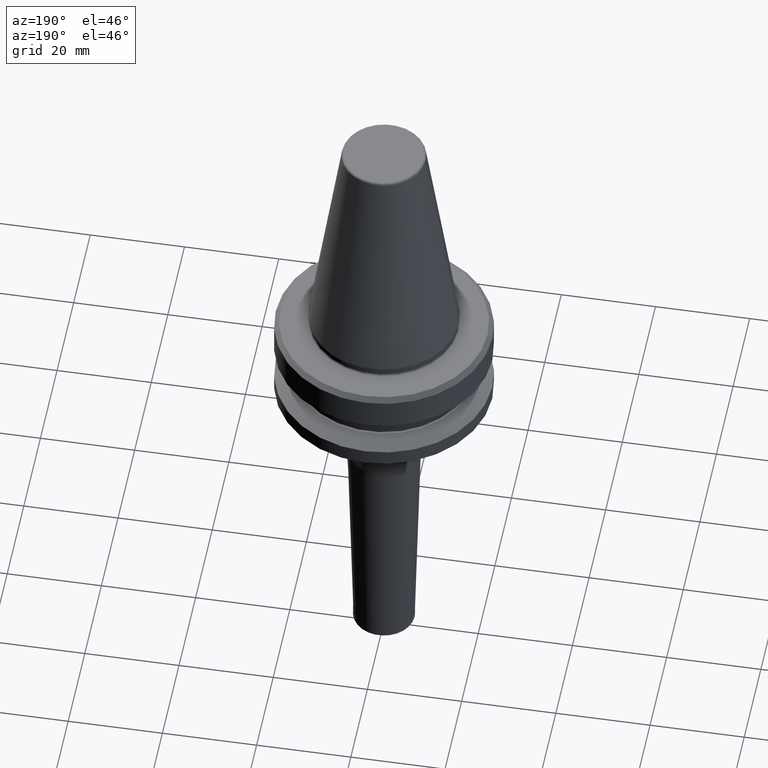
[diagram: clean part render]
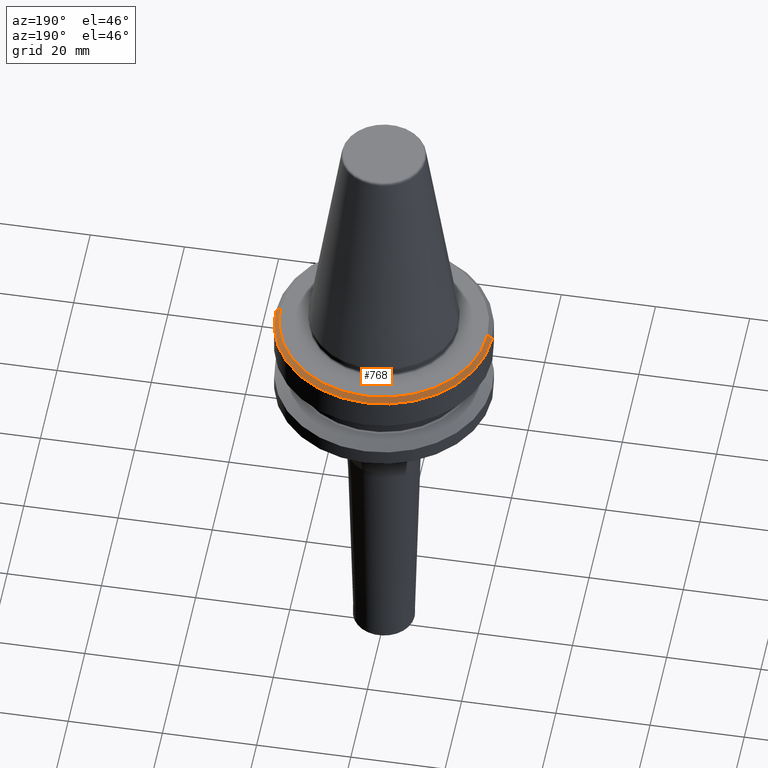
[diagram: same view with one face highlighted and labeled with its STEP entity id]
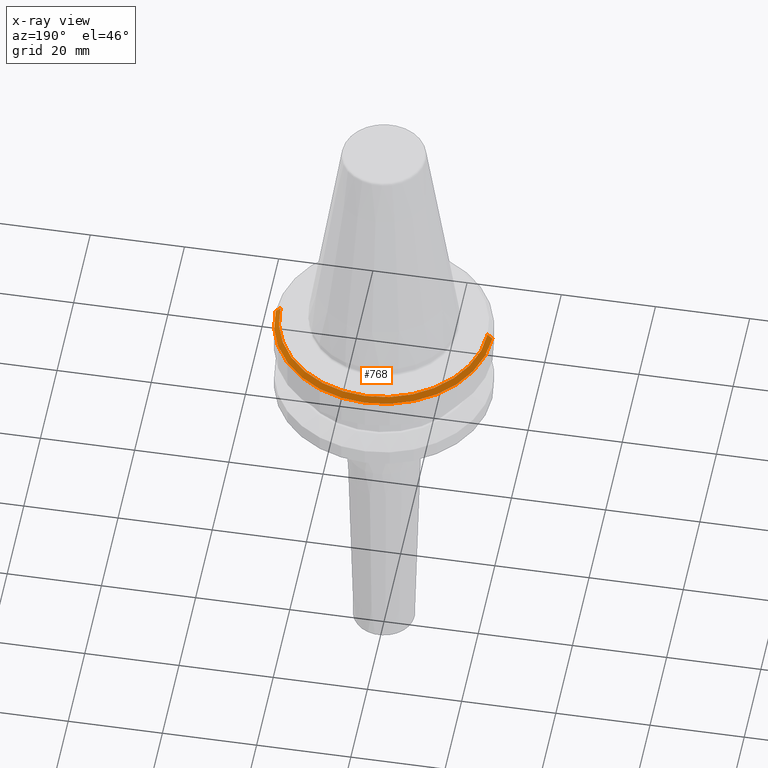
[diagram: x-ray of the same camera — body ghosted, the highlighted face saturated]
A machine part, auxiliary view. The second image highlights one B-rep face of the part: STEP entity #768.
The next image is the same camera in x-ray: the body ghosted, the highlighted face saturated — about 0% of this face is hidden behind the body in this view.
In plain terms, the highlighted conical surface has half-angle 45 deg.
Its self-contained STEP definition (entity closure, byte-faithful):
#29 = ORIENTED_EDGE ( 'NONE', *, *, #73, .T. ) ;
#41 = EDGE_CURVE ( 'NONE', #868, #389, #835, .T. ) ;
#54 = FACE_OUTER_BOUND ( 'NONE', #620, .T. ) ;
#73 = EDGE_CURVE ( 'NONE', #389, #440, #607, .T. ) ;
#90 = EDGE_CURVE ( 'NONE', #842, #440, #216, .T. ) ;
#165 = AXIS2_PLACEMENT_3D ( 'NONE', #373, #926, #457 ) ;
#195 = VECTOR ( 'NONE', #873, 1000.000000000000000 ) ;
#216 = LINE ( 'NONE', #462, #195 ) ;
#217 = VECTOR ( 'NONE', #698, 1000.000000000000000 ) ;
#291 = ORIENTED_EDGE ( 'NONE', *, *, #90, .F. ) ;
#301 = AXIS2_PLACEMENT_3D ( 'NONE', #1051, #529, #1034 ) ;
#309 = CARTESIAN_POINT ( 'NONE',  ( -22.00000000000002100, 0.0000000000000000000, -2.000000000000223800 ) ) ;
#373 = CARTESIAN_POINT ( 'NONE',  ( 0.0000000000000000000, 0.0000000000000000000, -2.000000000000223800 ) ) ;
#389 = VERTEX_POINT ( 'NONE', #881 ) ;
#440 = VERTEX_POINT ( 'NONE', #713 ) ;
#457 = DIRECTION ( 'NONE',  ( 1.000000000000000000, 0.0000000000000000000, 0.0000000000000000000 ) ) ;
#462 = CARTESIAN_POINT ( 'NONE',  ( -23.00000000000002100, 0.0000000000000000000, -3.000000000000113700 ) ) ;
#467 = CIRCLE ( 'NONE', #165, 22.00000000000002100 ) ;
#529 = DIRECTION ( 'NONE',  ( -0.0000000000000000000, -0.0000000000000000000, 1.000000000000000000 ) ) ;
#607 = CIRCLE ( 'NONE', #301, 23.00000000000002100 ) ;
#620 = EDGE_LOOP ( 'NONE', ( #745, #753, #29, #291 ) ) ;
#698 = DIRECTION ( 'NONE',  ( 0.7071067811865867600, 8.659560562355413600E-017, -0.7071067811865081600 ) ) ;
#713 = CARTESIAN_POINT ( 'NONE',  ( -23.00000000000002100, 2.816687638038915100E-015, -3.000000000000113700 ) ) ;
#730 = CONICAL_SURFACE ( 'NONE', #1007, 23.00000000000002100, 0.7853981633975037900 ) ;
#745 = ORIENTED_EDGE ( 'NONE', *, *, #757, .F. ) ;
#753 = ORIENTED_EDGE ( 'NONE', *, *, #41, .T. ) ;
#757 = EDGE_CURVE ( 'NONE', #868, #842, #467, .T. ) ;
#760 = DIRECTION ( 'NONE',  ( 0.0000000000000000000, 0.0000000000000000000, -1.000000000000000000 ) ) ;
#768 = ADVANCED_FACE ( 'NONE', ( #54 ), #730, .T. ) ;
#835 = LINE ( 'NONE', #837, #217 ) ;
#837 = CARTESIAN_POINT ( 'NONE',  ( 23.00000000000002100, 2.816687638038915100E-015, -3.000000000000113700 ) ) ;
#839 = CARTESIAN_POINT ( 'NONE',  ( 0.0000000000000000000, 0.0000000000000000000, -3.000000000000113700 ) ) ;
#842 = VERTEX_POINT ( 'NONE', #309 ) ;
#868 = VERTEX_POINT ( 'NONE', #1027 ) ;
#873 = DIRECTION ( 'NONE',  ( -0.7071067811865867600, 0.0000000000000000000, -0.7071067811865081600 ) ) ;
#881 = CARTESIAN_POINT ( 'NONE',  ( 23.00000000000002100, 0.0000000000000000000, -3.000000000000113700 ) ) ;
#926 = DIRECTION ( 'NONE',  ( -0.0000000000000000000, -0.0000000000000000000, 1.000000000000000000 ) ) ;
#1007 = AXIS2_PLACEMENT_3D ( 'NONE', #839, #760, #1011 ) ;
#1011 = DIRECTION ( 'NONE',  ( -1.000000000000000000, 0.0000000000000000000, 0.0000000000000000000 ) ) ;
#1027 = CARTESIAN_POINT ( 'NONE',  ( 22.00000000000002100, 2.755455298081547100E-015, -2.000000000000223800 ) ) ;
#1034 = DIRECTION ( 'NONE',  ( 1.000000000000000000, 0.0000000000000000000, 0.0000000000000000000 ) ) ;
#1051 = CARTESIAN_POINT ( 'NONE',  ( 0.0000000000000000000, 0.0000000000000000000, -3.000000000000113700 ) ) ;